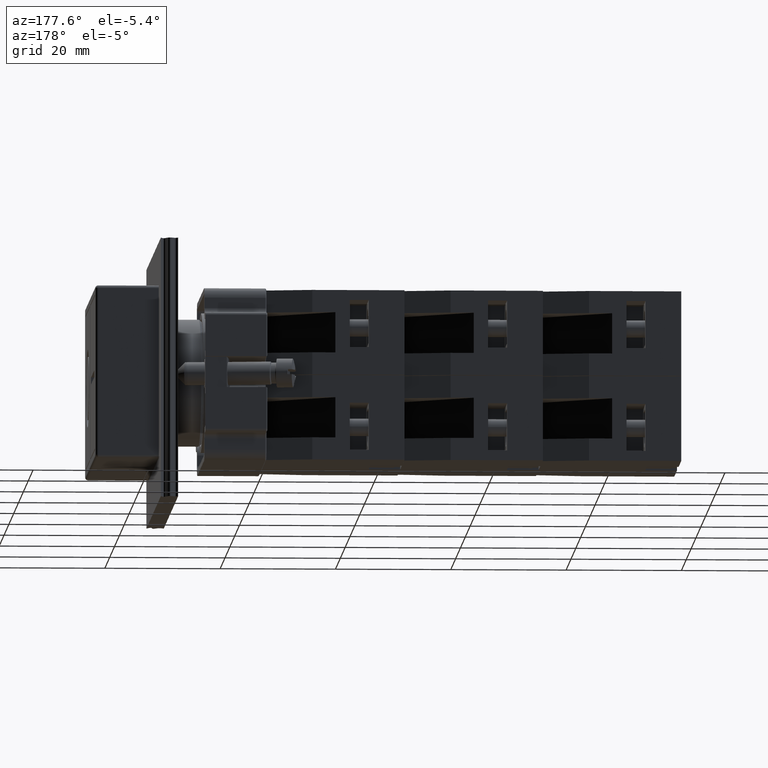
[diagram: clean part render]
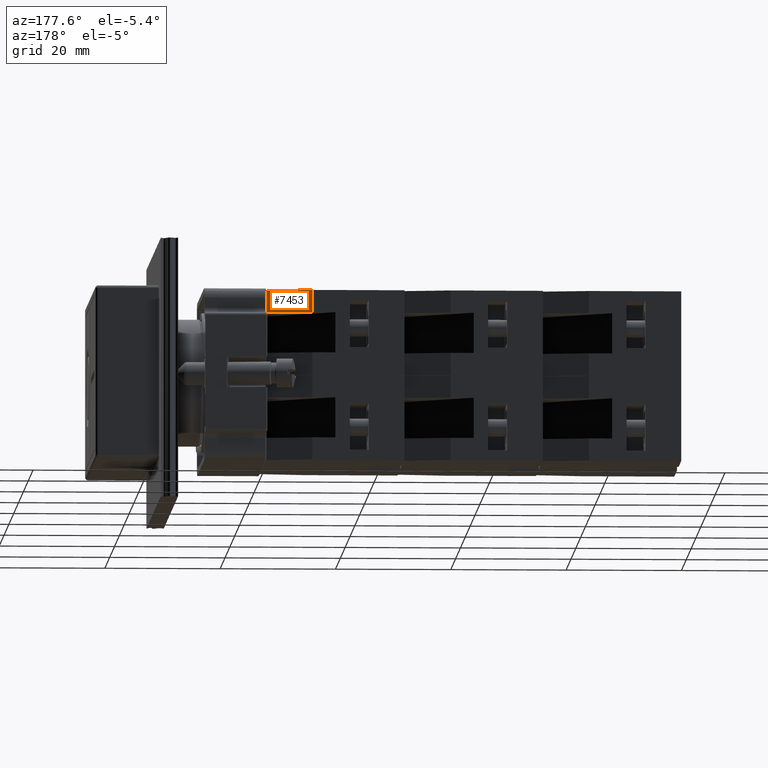
[diagram: same view with one face highlighted and labeled with its STEP entity id]
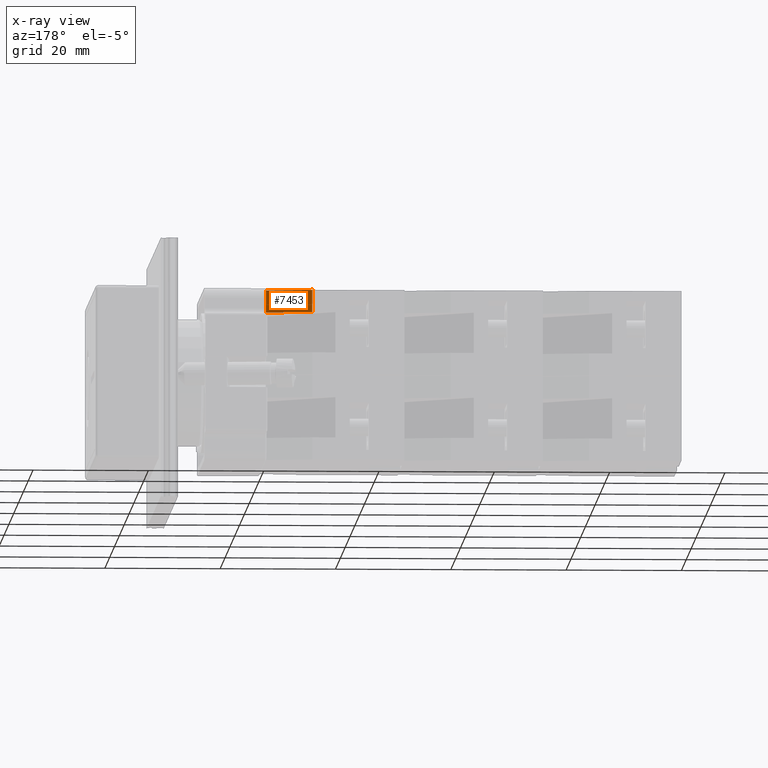
[diagram: x-ray of the same camera — body ghosted, the highlighted face saturated]
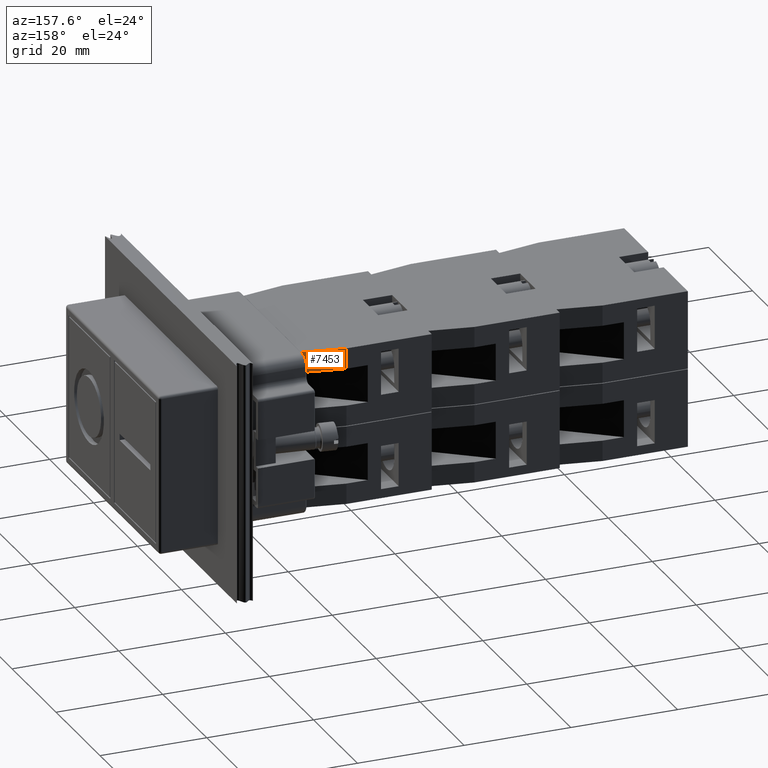
[diagram: same view with one face highlighted and labeled with its STEP entity id]
A machine part, auxiliary view. The second image highlights one B-rep face of the part: STEP entity #7453.
The next image is the same camera in x-ray: the body ghosted, the highlighted face saturated — about 0% of this face is hidden behind the body in this view.
A second angle (auxiliary view) of the same face is appended — the face is thin or edge-on in the first view.
In plain terms, the highlighted planar face has unit normal (0.1843, 0.9829, 0).
Its self-contained STEP definition (entity closure, byte-faithful):
#7215=CARTESIAN_POINT('',(-17.436741828918457,-0.202926676720378,10.850000000000000));
#7216=VERTEX_POINT('',#7215);
#7217=CARTESIAN_POINT('',(-15.936741828918466,7.797073323279626,10.850000000000000));
#7218=VERTEX_POINT('',#7217);
#7219=CARTESIAN_POINT('',(-17.436741828918457,-0.202926676720378,10.850000000000000));
#7220=DIRECTION('',(0.184288535050184,0.982872186934322,0.0));
#7221=VECTOR('',#7220,8.139410298049855);
#7222=LINE('',#7219,#7221);
#7223=EDGE_CURVE('',#7216,#7218,#7222,.T.);
#7343=CARTESIAN_POINT('',(-17.436741828918457,-0.202926676720377,14.699999999999999));
#7344=VERTEX_POINT('',#7343);
#7345=CARTESIAN_POINT('',(-17.436741828918457,-0.202926676720378,10.850000000000000));
#7346=DIRECTION('',(0.0,0.0,1.0));
#7347=VECTOR('',#7346,3.850000000000000);
#7348=LINE('',#7345,#7347);
#7349=EDGE_CURVE('',#7216,#7344,#7348,.T.);
#7430=CARTESIAN_POINT('',(-15.936741828918466,7.797073323279626,0.0));
#7431=DIRECTION('',(0.982872186934322,-0.184288535050184,0.0));
#7432=DIRECTION('',(0.0,0.0,-1.0));
#7433=AXIS2_PLACEMENT_3D('',#7430,#7431,#7432);
#7434=PLANE('',#7433);
#7435=ORIENTED_EDGE('',*,*,#7223,.T.);
#7436=CARTESIAN_POINT('',(-15.936741828918466,7.797073323279626,14.699999999999999));
#7437=VERTEX_POINT('',#7436);
#7438=CARTESIAN_POINT('',(-15.936741828918466,7.797073323279626,10.850000000000000));
#7439=DIRECTION('',(0.0,0.0,1.0));
#7440=VECTOR('',#7439,3.850000000000000);
#7441=LINE('',#7438,#7440);
#7442=EDGE_CURVE('',#7218,#7437,#7441,.T.);
#7443=ORIENTED_EDGE('',*,*,#7442,.T.);
#7444=CARTESIAN_POINT('',(-15.936741828918466,7.797073323279626,14.699999999999999));
#7445=DIRECTION('',(-0.184288535050184,-0.982872186934322,0.0));
#7446=VECTOR('',#7445,8.139410298049855);
#7447=LINE('',#7444,#7446);
#7448=EDGE_CURVE('',#7437,#7344,#7447,.T.);
#7449=ORIENTED_EDGE('',*,*,#7448,.T.);
#7450=ORIENTED_EDGE('',*,*,#7349,.F.);
#7451=EDGE_LOOP('',(#7435,#7443,#7449,#7450));
#7452=FACE_OUTER_BOUND('',#7451,.T.);
#7453=ADVANCED_FACE('',(#7452),#7434,.T.);